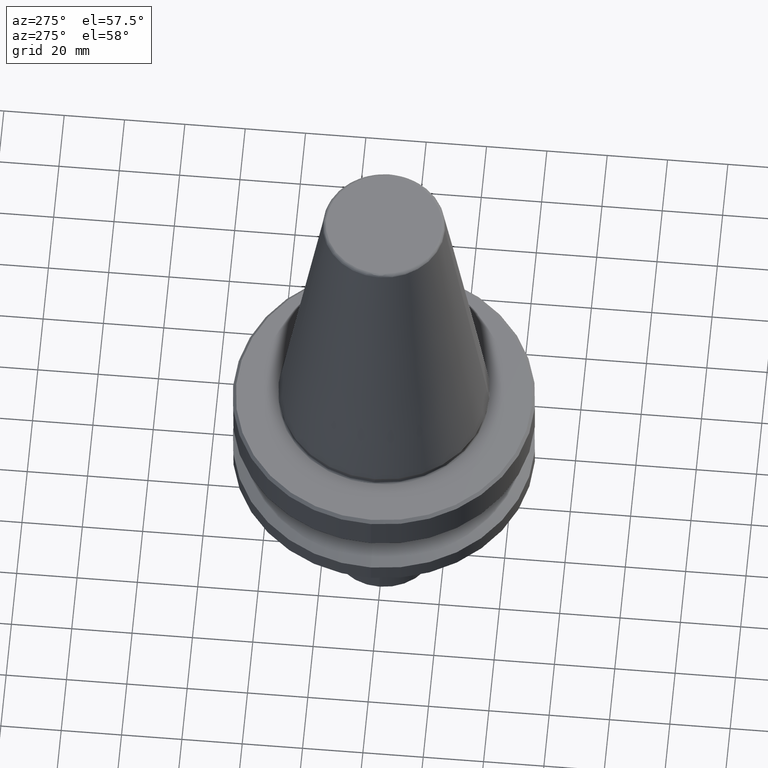
[diagram: clean part render]
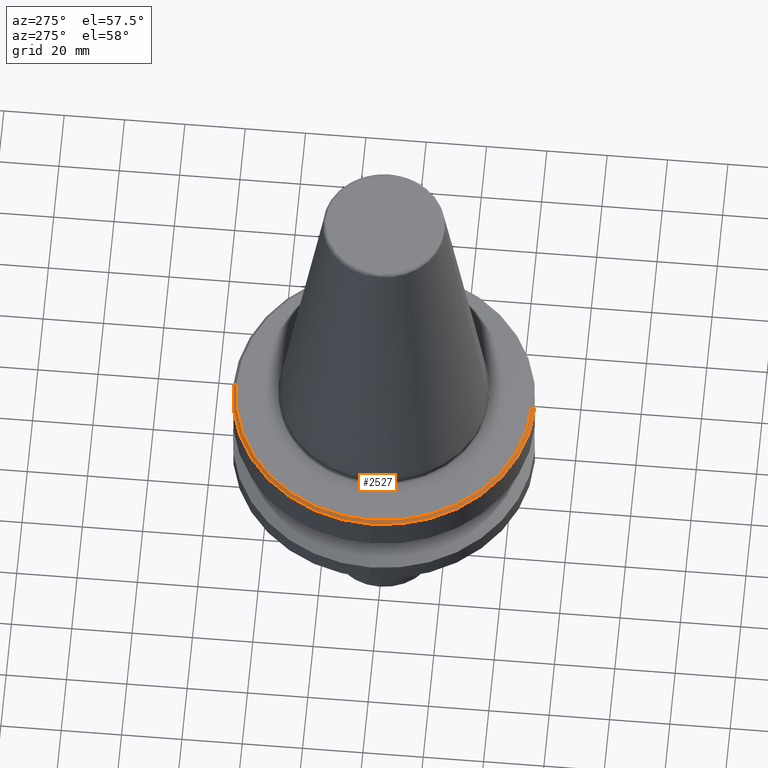
[diagram: same view with one face highlighted and labeled with its STEP entity id]
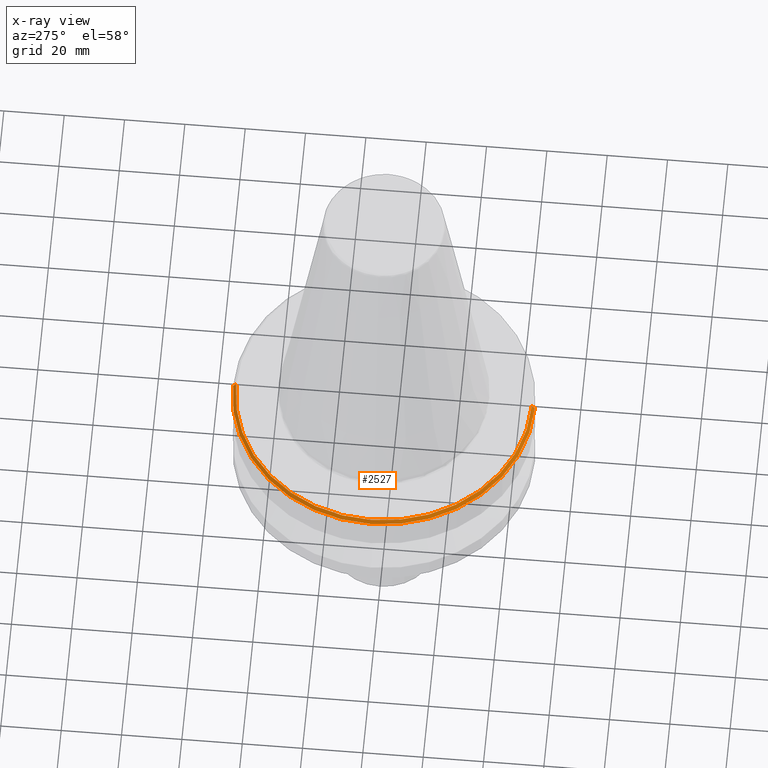
[diagram: x-ray of the same camera — body ghosted, the highlighted face saturated]
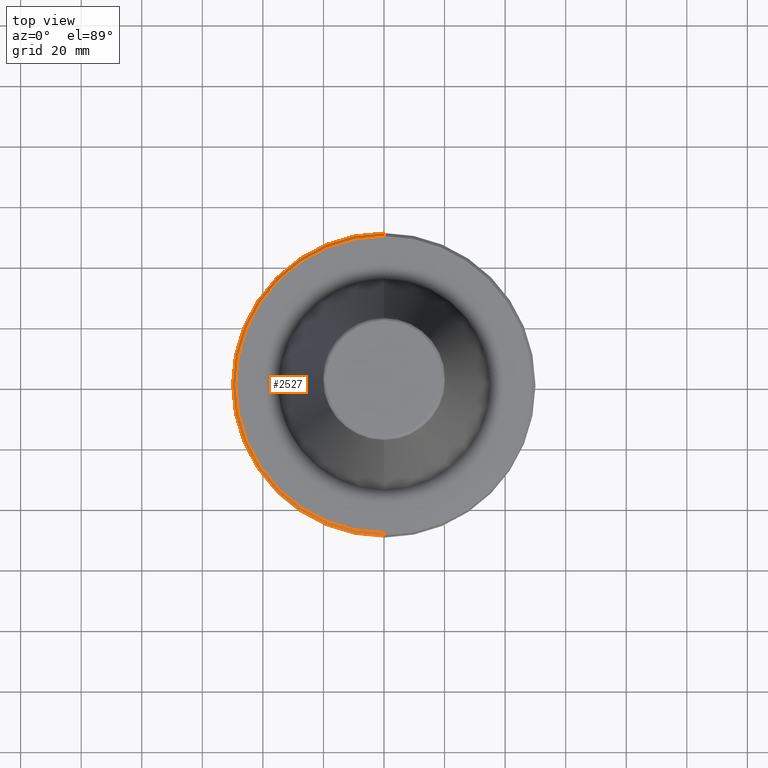
[diagram: same view with one face highlighted and labeled with its STEP entity id]
A machine part, auxiliary view. The second image highlights one B-rep face of the part: STEP entity #2527.
The next image is the same camera in x-ray: the body ghosted, the highlighted face saturated — about 0% of this face is hidden behind the body in this view.
A second angle (top view) of the same face is appended — the face is thin or edge-on in the first view.
In plain terms, the highlighted conical surface has half-angle 45 deg.
Its self-contained STEP definition (entity closure, byte-faithful):
#138 = CARTESIAN_POINT ( 'NONE',  ( 0.0000000000000000000, 50.00000000000000000, -3.999999999999989800 ) ) ;
#211 = CIRCLE ( 'NONE', #1930, 49.00000000000000000 ) ;
#240 = DIRECTION ( 'NONE',  ( 0.0000000000000000000, 8.673617379884035500E-018, -1.000000000000000000 ) ) ;
#308 = ORIENTED_EDGE ( 'NONE', *, *, #1092, .T. ) ;
#360 = ORIENTED_EDGE ( 'NONE', *, *, #1191, .T. ) ;
#420 = EDGE_CURVE ( 'NONE', #2278, #1342, #787, .T. ) ;
#633 = DIRECTION ( 'NONE',  ( -0.0000000000000000000, -0.0000000000000000000, 1.000000000000000000 ) ) ;
#640 = CIRCLE ( 'NONE', #2583, 50.00000000000000000 ) ;
#665 = CARTESIAN_POINT ( 'NONE',  ( 6.123233995736766100E-015, -50.00000000000000000, -3.999999999999989800 ) ) ;
#787 = LINE ( 'NONE', #1919, #1300 ) ;
#926 = VERTEX_POINT ( 'NONE', #2573 ) ;
#1059 = DIRECTION ( 'NONE',  ( 0.0000000000000000000, 0.7071067811865472400, -0.7071067811865479100 ) ) ;
#1092 = EDGE_CURVE ( 'NONE', #2278, #2241, #211, .T. ) ;
#1172 = CIRCLE ( 'NONE', #1754, 50.00000000000000000 ) ;
#1191 = EDGE_CURVE ( 'NONE', #926, #1342, #1172, .T. ) ;
#1222 = EDGE_LOOP ( 'NONE', ( #2543, #308, #1991, #2614, #360 ) ) ;
#1300 = VECTOR ( 'NONE', #1885, 999.9999999999998900 ) ;
#1342 = VERTEX_POINT ( 'NONE', #665 ) ;
#1351 = EDGE_CURVE ( 'NONE', #2241, #2520, #1899, .T. ) ;
#1370 = DIRECTION ( 'NONE',  ( 0.0000000000000000000, 1.000000000000000000, 1.734723475976807100E-017 ) ) ;
#1373 = CARTESIAN_POINT ( 'NONE',  ( 0.0000000000000000000, 0.0000000000000000000, -3.999999999999990700 ) ) ;
#1402 = DIRECTION ( 'NONE',  ( 0.0000000000000000000, 8.673617379884035500E-018, -1.000000000000000000 ) ) ;
#1445 = CARTESIAN_POINT ( 'NONE',  ( 0.0000000000000000000, -8.673617379884049300E-018, -2.999999999999988900 ) ) ;
#1473 = CARTESIAN_POINT ( 'NONE',  ( 0.0000000000000000000, 50.00000000000000000, -3.999999999999989800 ) ) ;
#1495 = DIRECTION ( 'NONE',  ( -1.000000000000000000, -8.881784197001252300E-016, -3.469446951953614200E-017 ) ) ;
#1497 = DIRECTION ( 'NONE',  ( -0.0000000000000000000, -0.0000000000000000000, 1.000000000000000000 ) ) ;
#1502 = CARTESIAN_POINT ( 'NONE',  ( 0.0000000000000000000, 0.0000000000000000000, -3.999999999999989800 ) ) ;
#1507 = CONICAL_SURFACE ( 'NONE', #2494, 50.00000000000000000, 0.7853981633974479500 ) ;
#1678 = DIRECTION ( 'NONE',  ( 0.0000000000000000000, 1.000000000000000000, 8.850629979473505400E-018 ) ) ;
#1698 = CARTESIAN_POINT ( 'NONE',  ( 6.062001655779398500E-015, -49.00000000000000000, -2.999999999999989300 ) ) ;
#1754 = AXIS2_PLACEMENT_3D ( 'NONE', #1945, #633, #2183 ) ;
#1765 = CARTESIAN_POINT ( 'NONE',  ( 0.0000000000000000000, 49.00000000000000000, -2.999999999999988500 ) ) ;
#1885 = DIRECTION ( 'NONE',  ( 8.659560562354930400E-017, -0.7071067811865472400, -0.7071067811865479100 ) ) ;
#1899 = LINE ( 'NONE', #138, #2460 ) ;
#1919 = CARTESIAN_POINT ( 'NONE',  ( 6.123233995736766100E-015, -50.00000000000000000, -3.999999999999991600 ) ) ;
#1930 = AXIS2_PLACEMENT_3D ( 'NONE', #1445, #240, #1678 ) ;
#1945 = CARTESIAN_POINT ( 'NONE',  ( 0.0000000000000000000, 0.0000000000000000000, -3.999999999999989800 ) ) ;
#1991 = ORIENTED_EDGE ( 'NONE', *, *, #1351, .T. ) ;
#2183 = DIRECTION ( 'NONE',  ( -1.000000000000000000, 0.0000000000000000000, -3.469446951953614200E-017 ) ) ;
#2241 = VERTEX_POINT ( 'NONE', #1765 ) ;
#2278 = VERTEX_POINT ( 'NONE', #1698 ) ;
#2349 = FACE_OUTER_BOUND ( 'NONE', #1222, .T. ) ;
#2445 = EDGE_CURVE ( 'NONE', #2520, #926, #640, .T. ) ;
#2460 = VECTOR ( 'NONE', #1059, 999.9999999999998900 ) ;
#2494 = AXIS2_PLACEMENT_3D ( 'NONE', #1373, #1402, #1370 ) ;
#2520 = VERTEX_POINT ( 'NONE', #1473 ) ;
#2527 = ADVANCED_FACE ( 'NONE', ( #2349 ), #1507, .T. ) ;
#2543 = ORIENTED_EDGE ( 'NONE', *, *, #420, .F. ) ;
#2573 = CARTESIAN_POINT ( 'NONE',  ( -50.00000000000000000, 6.123233995736766100E-015, -3.999999999999989800 ) ) ;
#2583 = AXIS2_PLACEMENT_3D ( 'NONE', #1502, #1497, #1495 ) ;
#2614 = ORIENTED_EDGE ( 'NONE', *, *, #2445, .T. ) ;